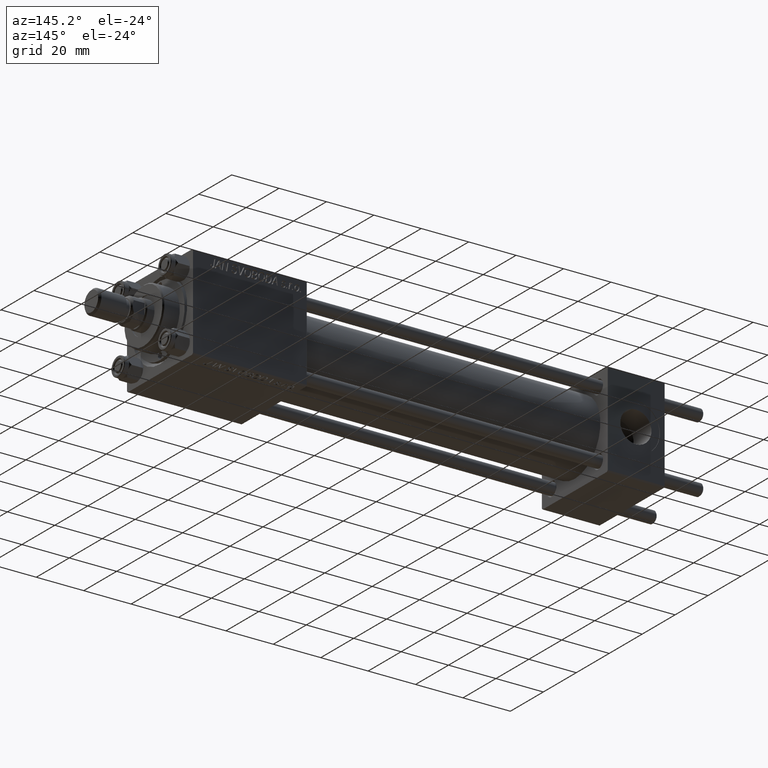
[diagram: clean part render]
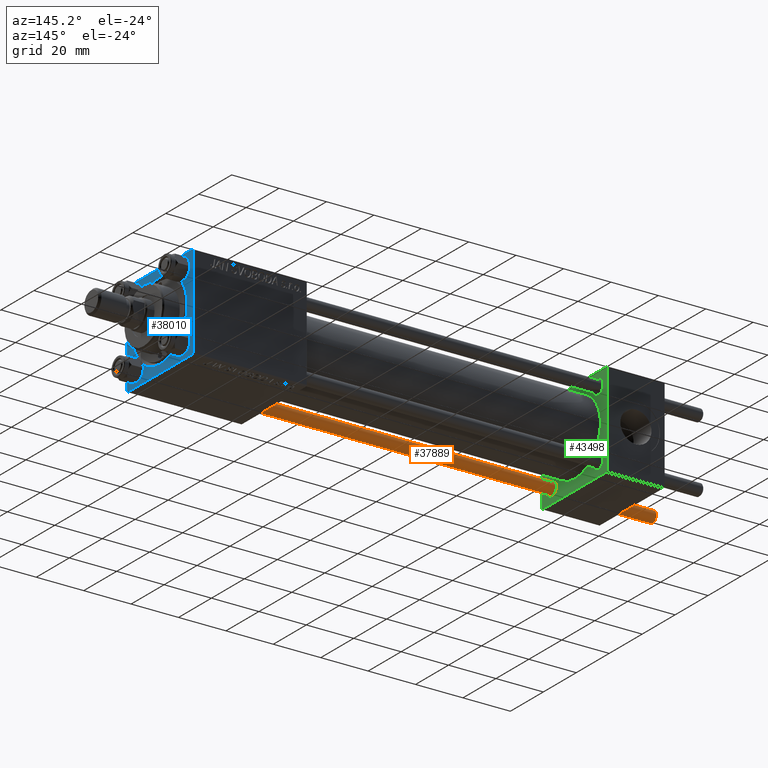
[diagram: same view with three faces highlighted in distinct colors, each labeled with its STEP entity id]
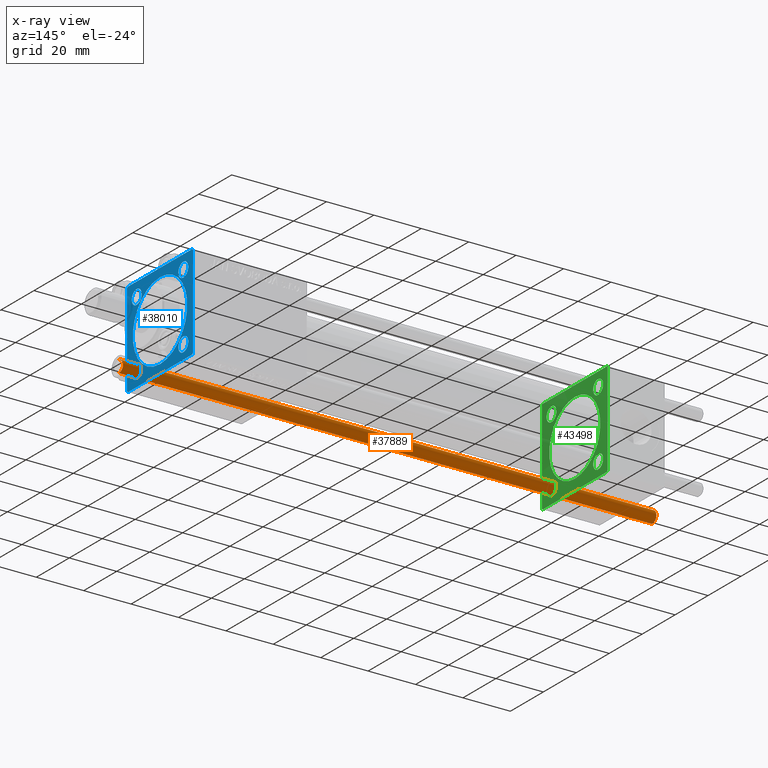
[diagram: x-ray of the same camera — body ghosted, the three highlighted faces saturated]
A machine part, auxiliary view with three faces highlighted in distinct colors.
The next image is the same camera in x-ray (body ghosted, the three faces saturated) — at least one of them is partly hidden behind the body in this view.
Their STEP definitions:

[orange] entity #37889 — the highlighted cylindrical surface (edge-blend (fillet) strip) has radius 2.5 mm, axis along (-1, 0, 0).
#1146 = VERTEX_POINT ( 'NONE', #32848 ) ;
#4361 = CARTESIAN_POINT ( 'NONE',  ( 0.000000000000000000, 0.000000000000000000, 225.5000000000000284 ) ) ;
#4557 = EDGE_CURVE ( 'NONE', #41733, #45224, #27070, .T. ) ;
#5912 = FACE_OUTER_BOUND ( 'NONE', #22734, .T. ) ;
#6117 = AXIS2_PLACEMENT_3D ( 'NONE', #24953, #28756, #44580 ) ;
#6160 = DIRECTION ( 'NONE',  ( -0.000000000000000000, -0.000000000000000000, -1.000000000000000000 ) ) ;
#10941 = CARTESIAN_POINT ( 'NONE',  ( -2.500000000000000000, 0.000000000000000000, 225.5000000000000284 ) ) ;
#10950 = ORIENTED_EDGE ( 'NONE', *, *, #15671, .F. ) ;
#11726 = DIRECTION ( 'NONE',  ( 1.000000000000000000, 0.000000000000000000, 0.000000000000000000 ) ) ;
#13451 = CIRCLE ( 'NONE', #6117, 2.500000000000000000 ) ;
#14141 = LINE ( 'NONE', #40922, #20750 ) ;
#15671 = EDGE_CURVE ( 'NONE', #1146, #49301, #14141, .T. ) ;
#19627 = DIRECTION ( 'NONE',  ( 0.000000000000000000, 0.000000000000000000, -1.000000000000000000 ) ) ;
#20562 = ORIENTED_EDGE ( 'NONE', *, *, #23831, .T. ) ;
#20750 = VECTOR ( 'NONE', #21061, 1000.000000000000000 ) ;
#21061 = DIRECTION ( 'NONE',  ( -0.000000000000000000, -0.000000000000000000, -1.000000000000000000 ) ) ;
#21688 = DIRECTION ( 'NONE',  ( -1.000000000000000000, 0.000000000000000000, 0.000000000000000000 ) ) ;
#22734 = EDGE_LOOP ( 'NONE', ( #10950, #20562, #43077, #37285 ) ) ;
#23831 = EDGE_CURVE ( 'NONE', #1146, #41733, #25910, .T. ) ;
#23979 = AXIS2_PLACEMENT_3D ( 'NONE', #45643, #6160, #21688 ) ;
#24953 = CARTESIAN_POINT ( 'NONE',  ( 0.000000000000000000, 0.000000000000000000, 0.4999999999999726885 ) ) ;
#25417 = VECTOR ( 'NONE', #46704, 1000.000000000000000 ) ;
#25910 = CIRCLE ( 'NONE', #49536, 2.500000000000000000 ) ;
#27070 = LINE ( 'NONE', #27580, #25417 ) ;
#27580 = CARTESIAN_POINT ( 'NONE',  ( -2.500000000000000000, 0.000000000000000000, 226.0000000000000000 ) ) ;
#28082 = CARTESIAN_POINT ( 'NONE',  ( 2.500000000000000000, 3.061616997868383141E-16, 0.4999999999999726885 ) ) ;
#28756 = DIRECTION ( 'NONE',  ( -0.000000000000000000, -0.000000000000000000, 1.000000000000000000 ) ) ;
#31093 = CARTESIAN_POINT ( 'NONE',  ( -2.500000000000000000, 0.000000000000000000, 0.4999999999999726885 ) ) ;
#32848 = CARTESIAN_POINT ( 'NONE',  ( 2.500000000000000000, 3.061616997868383141E-16, 225.5000000000000284 ) ) ;
#37285 = ORIENTED_EDGE ( 'NONE', *, *, #43283, .T. ) ;
#37889 = ADVANCED_FACE ( 'NONE', ( #5912 ), #41053, .T. ) ;
#40922 = CARTESIAN_POINT ( 'NONE',  ( 2.500000000000000000, 3.061616997868383141E-16, 226.0000000000000000 ) ) ;
#41053 = CYLINDRICAL_SURFACE ( 'NONE', #23979, 2.500000000000000000 ) ;
#41733 = VERTEX_POINT ( 'NONE', #10941 ) ;
#43077 = ORIENTED_EDGE ( 'NONE', *, *, #4557, .T. ) ;
#43283 = EDGE_CURVE ( 'NONE', #45224, #49301, #13451, .T. ) ;
#44580 = DIRECTION ( 'NONE',  ( 1.000000000000000000, 0.000000000000000000, 0.000000000000000000 ) ) ;
#45224 = VERTEX_POINT ( 'NONE', #31093 ) ;
#45643 = CARTESIAN_POINT ( 'NONE',  ( 0.000000000000000000, 0.000000000000000000, 226.0000000000000000 ) ) ;
#46704 = DIRECTION ( 'NONE',  ( -0.000000000000000000, -0.000000000000000000, -1.000000000000000000 ) ) ;
#49301 = VERTEX_POINT ( 'NONE', #28082 ) ;
#49536 = AXIS2_PLACEMENT_3D ( 'NONE', #4361, #19627, #11726 ) ;

[blue] entity #38010 — the highlighted planar face has unit normal (-1, 0, 0).
#72 = ORIENTED_EDGE ( 'NONE', *, *, #47641, .T. ) ;
#213 = LINE ( 'NONE', #11420, #15788 ) ;
#277 = FACE_BOUND ( 'NONE', #34258, .T. ) ;
#496 = CARTESIAN_POINT ( 'NONE',  ( 199.0000000000000000, 19.99999999999999645, -20.00000000000000000 ) ) ;
#724 = DIRECTION ( 'NONE',  ( -1.000000000000000000, -0.000000000000000000, -0.000000000000000000 ) ) ;
#814 = ORIENTED_EDGE ( 'NONE', *, *, #44709, .T. ) ;
#2834 = EDGE_LOOP ( 'NONE', ( #7460, #32580 ) ) ;
#2991 = CARTESIAN_POINT ( 'NONE',  ( 199.0000000000000000, 14.15000000000000036, -14.15000000000000036 ) ) ;
#3607 = CARTESIAN_POINT ( 'NONE',  ( 199.0000000000000000, 0.000000000000000000, 0.000000000000000000 ) ) ;
#3660 = VERTEX_POINT ( 'NONE', #23242 ) ;
#4053 = EDGE_LOOP ( 'NONE', ( #7087, #46323 ) ) ;
#4117 = FACE_BOUND ( 'NONE', #41020, .T. ) ;
#4552 = CARTESIAN_POINT ( 'NONE',  ( 199.0000000000000000, -14.15000000000000036, 14.15000000000000036 ) ) ;
#5052 = VERTEX_POINT ( 'NONE', #18930 ) ;
#5405 = VERTEX_POINT ( 'NONE', #31336 ) ;
#5567 = VECTOR ( 'NONE', #49467, 1000.000000000000114 ) ;
#5981 = ORIENTED_EDGE ( 'NONE', *, *, #9952, .T. ) ;
#6228 = CIRCLE ( 'NONE', #23316, 2.999999999999976463 ) ;
#6232 = AXIS2_PLACEMENT_3D ( 'NONE', #49005, #17906, #33422 ) ;
#6458 = EDGE_CURVE ( 'NONE', #5405, #11532, #21372, .T. ) ;
#7087 = ORIENTED_EDGE ( 'NONE', *, *, #20255, .T. ) ;
#7112 = VERTEX_POINT ( 'NONE', #44597 ) ;
#7393 = CARTESIAN_POINT ( 'NONE',  ( 199.0000000000000000, 14.15000000000000036, 11.15000000000002700 ) ) ;
#7460 = ORIENTED_EDGE ( 'NONE', *, *, #6458, .T. ) ;
#8098 = CARTESIAN_POINT ( 'NONE',  ( 199.0000000000000000, -20.00000000000000355, 19.50000000000002487 ) ) ;
#8179 = FACE_BOUND ( 'NONE', #36746, .T. ) ;
#8484 = VERTEX_POINT ( 'NONE', #7393 ) ;
#8618 = EDGE_CURVE ( 'NONE', #35675, #3660, #26986, .T. ) ;
#8713 = ORIENTED_EDGE ( 'NONE', *, *, #10591, .T. ) ;
#9439 = CIRCLE ( 'NONE', #22431, 16.49999999999995737 ) ;
#9619 = ORIENTED_EDGE ( 'NONE', *, *, #46611, .T. ) ;
#9952 = EDGE_CURVE ( 'NONE', #22652, #21978, #29614, .T. ) ;
#10068 = DIRECTION ( 'NONE',  ( -1.000000000000000000, -0.000000000000000000, -0.000000000000000000 ) ) ;
#10160 = AXIS2_PLACEMENT_3D ( 'NONE', #36776, #21483, #41104 ) ;
#10591 = EDGE_CURVE ( 'NONE', #7112, #3660, #42344, .T. ) ;
#10925 = VECTOR ( 'NONE', #45307, 1000.000000000000000 ) ;
#11234 = FACE_BOUND ( 'NONE', #4053, .T. ) ;
#11420 = CARTESIAN_POINT ( 'NONE',  ( 199.0000000000000000, 19.99999999999999645, 20.00000000000000000 ) ) ;
#11532 = VERTEX_POINT ( 'NONE', #43982 ) ;
#11546 = ORIENTED_EDGE ( 'NONE', *, *, #15171, .T. ) ;
#11983 = DIRECTION ( 'NONE',  ( -0.000000000000000000, 0.000000000000000000, 1.000000000000000000 ) ) ;
#12088 = VERTEX_POINT ( 'NONE', #47325 ) ;
#12787 = CARTESIAN_POINT ( 'NONE',  ( 199.0000000000000000, -14.15000000000000036, 11.15000000000002700 ) ) ;
#12998 = DIRECTION ( 'NONE',  ( -1.000000000000000000, -0.000000000000000000, -0.000000000000000000 ) ) ;
#13358 = DIRECTION ( 'NONE',  ( 0.000000000000000000, 0.000000000000000000, 1.000000000000000000 ) ) ;
#13706 = CARTESIAN_POINT ( 'NONE',  ( 199.0000000000000000, 19.99999999999999645, 20.00000000000000000 ) ) ;
#13776 = LINE ( 'NONE', #29314, #5567 ) ;
#14367 = CIRCLE ( 'NONE', #20893, 2.999999999999976463 ) ;
#14501 = EDGE_CURVE ( 'NONE', #49782, #5052, #25437, .T. ) ;
#14834 = CARTESIAN_POINT ( 'NONE',  ( 199.0000000000000000, 0.000000000000000000, 0.000000000000000000 ) ) ;
#15084 = DIRECTION ( 'NONE',  ( 0.000000000000000000, 8.673617379884036705E-17, -1.000000000000000000 ) ) ;
#15171 = EDGE_CURVE ( 'NONE', #17262, #37273, #19115, .T. ) ;
#15446 = ORIENTED_EDGE ( 'NONE', *, *, #21332, .T. ) ;
#15553 = FACE_OUTER_BOUND ( 'NONE', #27045, .T. ) ;
#15788 = VECTOR ( 'NONE', #31270, 1000.000000000000000 ) ;
#15897 = AXIS2_PLACEMENT_3D ( 'NONE', #2991, #21580, #28966 ) ;
#17262 = VERTEX_POINT ( 'NONE', #30750 ) ;
#17773 = EDGE_CURVE ( 'NONE', #21978, #22652, #9439, .T. ) ;
#17906 = DIRECTION ( 'NONE',  ( -1.000000000000000000, -0.000000000000000000, -0.000000000000000000 ) ) ;
#18153 = VERTEX_POINT ( 'NONE', #45001 ) ;
#18247 = AXIS2_PLACEMENT_3D ( 'NONE', #3607, #35163, #11983 ) ;
#18558 = EDGE_CURVE ( 'NONE', #37273, #17262, #44483, .T. ) ;
#18665 = DIRECTION ( 'NONE',  ( 0.000000000000000000, 0.000000000000000000, 1.000000000000000000 ) ) ;
#18817 = DIRECTION ( 'NONE',  ( 0.000000000000000000, 0.000000000000000000, 1.000000000000000000 ) ) ;
#18930 = CARTESIAN_POINT ( 'NONE',  ( 199.0000000000000000, 19.99999999999999645, -19.50000000000000000 ) ) ;
#19115 = CIRCLE ( 'NONE', #10160, 2.999999999999976463 ) ;
#19261 = DIRECTION ( 'NONE',  ( 0.000000000000000000, -0.7071067811865474617, 0.7071067811865474617 ) ) ;
#19384 = CARTESIAN_POINT ( 'NONE',  ( 199.0000000000000000, -19.49999999999999645, -20.00000000000000000 ) ) ;
#19631 = PLANE ( 'NONE',  #18247 ) ;
#20249 = ORIENTED_EDGE ( 'NONE', *, *, #36931, .T. ) ;
#20255 = EDGE_CURVE ( 'NONE', #18153, #34036, #14367, .T. ) ;
#20427 = CARTESIAN_POINT ( 'NONE',  ( 199.0000000000000000, 19.49999999999999645, -20.00000000000000000 ) ) ;
#20893 = AXIS2_PLACEMENT_3D ( 'NONE', #44891, #32894, #28332 ) ;
#21157 = VERTEX_POINT ( 'NONE', #8098 ) ;
#21332 = EDGE_CURVE ( 'NONE', #21157, #7112, #34443, .T. ) ;
#21372 = CIRCLE ( 'NONE', #23008, 2.999999999999976463 ) ;
#21483 = DIRECTION ( 'NONE',  ( -1.000000000000000000, -0.000000000000000000, -0.000000000000000000 ) ) ;
#21580 = DIRECTION ( 'NONE',  ( -1.000000000000000000, -0.000000000000000000, -0.000000000000000000 ) ) ;
#21978 = VERTEX_POINT ( 'NONE', #34327 ) ;
#22431 = AXIS2_PLACEMENT_3D ( 'NONE', #14834, #38292, #18665 ) ;
#22652 = VERTEX_POINT ( 'NONE', #48653 ) ;
#23008 = AXIS2_PLACEMENT_3D ( 'NONE', #26967, #38440, #18817 ) ;
#23242 = CARTESIAN_POINT ( 'NONE',  ( 199.0000000000000000, -19.49999999999999645, -20.00000000000000000 ) ) ;
#23316 = AXIS2_PLACEMENT_3D ( 'NONE', #43112, #12998, #48182 ) ;
#23593 = EDGE_CURVE ( 'NONE', #35675, #5052, #13776, .T. ) ;
#23826 = CARTESIAN_POINT ( 'NONE',  ( 199.0000000000000000, -19.50000000000003197, 19.99999999999999645 ) ) ;
#24817 = CIRCLE ( 'NONE', #15897, 2.999999999999976463 ) ;
#24864 = LINE ( 'NONE', #36580, #44531 ) ;
#25139 = ORIENTED_EDGE ( 'NONE', *, *, #23593, .T. ) ;
#25437 = LINE ( 'NONE', #13706, #10925 ) ;
#25654 = CARTESIAN_POINT ( 'NONE',  ( 199.0000000000000000, 19.99999999999999645, 19.50000000000002842 ) ) ;
#25681 = VECTOR ( 'NONE', #19261, 1000.000000000000114 ) ;
#26967 = CARTESIAN_POINT ( 'NONE',  ( 199.0000000000000000, 14.15000000000000036, -14.15000000000000036 ) ) ;
#26986 = LINE ( 'NONE', #496, #44270 ) ;
#27045 = EDGE_LOOP ( 'NONE', ( #15446, #8713, #36323, #25139, #48981, #814, #20249, #72 ) ) ;
#28104 = AXIS2_PLACEMENT_3D ( 'NONE', #28149, #28645, #13358 ) ;
#28149 = CARTESIAN_POINT ( 'NONE',  ( 199.0000000000000000, -14.15000000000000036, -14.15000000000000036 ) ) ;
#28332 = DIRECTION ( 'NONE',  ( 0.000000000000000000, 0.000000000000000000, 1.000000000000000000 ) ) ;
#28645 = DIRECTION ( 'NONE',  ( -1.000000000000000000, -0.000000000000000000, -0.000000000000000000 ) ) ;
#28966 = DIRECTION ( 'NONE',  ( 0.000000000000000000, 0.000000000000000000, 1.000000000000000000 ) ) ;
#29170 = DIRECTION ( 'NONE',  ( -0.000000000000000000, -0.7071067811865474617, -0.7071067811865474617 ) ) ;
#29184 = CARTESIAN_POINT ( 'NONE',  ( 199.0000000000000000, 0.000000000000000000, 0.000000000000000000 ) ) ;
#29314 = CARTESIAN_POINT ( 'NONE',  ( 199.0000000000000000, 19.99999999999999645, -19.50000000000000000 ) ) ;
#29614 = CIRCLE ( 'NONE', #41870, 16.49999999999995737 ) ;
#30750 = CARTESIAN_POINT ( 'NONE',  ( 199.0000000000000000, -14.15000000000000036, 17.14999999999997726 ) ) ;
#31270 = DIRECTION ( 'NONE',  ( 0.000000000000000000, -1.000000000000000000, -8.673617379884035472E-17 ) ) ;
#31336 = CARTESIAN_POINT ( 'NONE',  ( 199.0000000000000000, 14.15000000000000036, -17.14999999999997726 ) ) ;
#32020 = DIRECTION ( 'NONE',  ( 0.000000000000000000, 0.000000000000000000, 1.000000000000000000 ) ) ;
#32322 = VERTEX_POINT ( 'NONE', #40783 ) ;
#32580 = ORIENTED_EDGE ( 'NONE', *, *, #39479, .T. ) ;
#32894 = DIRECTION ( 'NONE',  ( -1.000000000000000000, -0.000000000000000000, -0.000000000000000000 ) ) ;
#33422 = DIRECTION ( 'NONE',  ( 0.000000000000000000, 0.000000000000000000, 1.000000000000000000 ) ) ;
#34036 = VERTEX_POINT ( 'NONE', #34835 ) ;
#34258 = EDGE_LOOP ( 'NONE', ( #37800, #11546 ) ) ;
#34327 = CARTESIAN_POINT ( 'NONE',  ( 199.0000000000000000, 0.000000000000000000, -16.49999999999995737 ) ) ;
#34443 = LINE ( 'NONE', #50018, #42921 ) ;
#34835 = CARTESIAN_POINT ( 'NONE',  ( 199.0000000000000000, -14.15000000000000036, -11.15000000000002522 ) ) ;
#35163 = DIRECTION ( 'NONE',  ( -1.000000000000000000, 0.000000000000000000, -0.000000000000000000 ) ) ;
#35675 = VERTEX_POINT ( 'NONE', #20427 ) ;
#36295 = CIRCLE ( 'NONE', #6232, 2.999999999999976463 ) ;
#36323 = ORIENTED_EDGE ( 'NONE', *, *, #8618, .F. ) ;
#36580 = CARTESIAN_POINT ( 'NONE',  ( 199.0000000000000000, -20.00000000000000355, 19.50000000000002487 ) ) ;
#36746 = EDGE_LOOP ( 'NONE', ( #41040, #9619 ) ) ;
#36747 = ORIENTED_EDGE ( 'NONE', *, *, #17773, .T. ) ;
#36776 = CARTESIAN_POINT ( 'NONE',  ( 199.0000000000000000, -14.15000000000000036, 14.15000000000000036 ) ) ;
#36931 = EDGE_CURVE ( 'NONE', #12088, #42993, #213, .T. ) ;
#37273 = VERTEX_POINT ( 'NONE', #12787 ) ;
#37800 = ORIENTED_EDGE ( 'NONE', *, *, #18558, .T. ) ;
#38010 = ADVANCED_FACE ( 'NONE', ( #11234, #38496, #8179, #277, #4117, #15553 ), #19631, .F. ) ;
#38292 = DIRECTION ( 'NONE',  ( -1.000000000000000000, -0.000000000000000000, -0.000000000000000000 ) ) ;
#38440 = DIRECTION ( 'NONE',  ( -1.000000000000000000, -0.000000000000000000, -0.000000000000000000 ) ) ;
#38496 = FACE_BOUND ( 'NONE', #2834, .T. ) ;
#38629 = CARTESIAN_POINT ( 'NONE',  ( 199.0000000000000000, 19.50000000000002487, 20.00000000000000000 ) ) ;
#39479 = EDGE_CURVE ( 'NONE', #11532, #5405, #24817, .T. ) ;
#40783 = CARTESIAN_POINT ( 'NONE',  ( 199.0000000000000000, 14.15000000000000036, 17.14999999999997726 ) ) ;
#41020 = EDGE_LOOP ( 'NONE', ( #36747, #5981 ) ) ;
#41040 = ORIENTED_EDGE ( 'NONE', *, *, #42566, .T. ) ;
#41104 = DIRECTION ( 'NONE',  ( 0.000000000000000000, 0.000000000000000000, 1.000000000000000000 ) ) ;
#41870 = AXIS2_PLACEMENT_3D ( 'NONE', #29184, #10068, #44995 ) ;
#42014 = AXIS2_PLACEMENT_3D ( 'NONE', #4552, #724, #32020 ) ;
#42344 = LINE ( 'NONE', #19384, #42710 ) ;
#42539 = DIRECTION ( 'NONE',  ( 0.000000000000000000, -1.000000000000000000, 0.000000000000000000 ) ) ;
#42566 = EDGE_CURVE ( 'NONE', #8484, #32322, #36295, .T. ) ;
#42710 = VECTOR ( 'NONE', #49986, 1000.000000000000114 ) ;
#42921 = VECTOR ( 'NONE', #15084, 1000.000000000000000 ) ;
#42993 = VERTEX_POINT ( 'NONE', #23826 ) ;
#43112 = CARTESIAN_POINT ( 'NONE',  ( 199.0000000000000000, 14.15000000000000036, 14.15000000000000036 ) ) ;
#43982 = CARTESIAN_POINT ( 'NONE',  ( 199.0000000000000000, 14.15000000000000036, -11.15000000000002522 ) ) ;
#44270 = VECTOR ( 'NONE', #42539, 1000.000000000000000 ) ;
#44483 = CIRCLE ( 'NONE', #42014, 2.999999999999976463 ) ;
#44531 = VECTOR ( 'NONE', #29170, 1000.000000000000114 ) ;
#44597 = CARTESIAN_POINT ( 'NONE',  ( 199.0000000000000000, -20.00000000000000000, -19.49999999999999645 ) ) ;
#44709 = EDGE_CURVE ( 'NONE', #49782, #12088, #50375, .T. ) ;
#44818 = EDGE_CURVE ( 'NONE', #34036, #18153, #49287, .T. ) ;
#44891 = CARTESIAN_POINT ( 'NONE',  ( 199.0000000000000000, -14.15000000000000036, -14.15000000000000036 ) ) ;
#44995 = DIRECTION ( 'NONE',  ( 0.000000000000000000, 0.000000000000000000, 1.000000000000000000 ) ) ;
#45001 = CARTESIAN_POINT ( 'NONE',  ( 199.0000000000000000, -14.15000000000000036, -17.14999999999997726 ) ) ;
#45307 = DIRECTION ( 'NONE',  ( 0.000000000000000000, 0.000000000000000000, -1.000000000000000000 ) ) ;
#46323 = ORIENTED_EDGE ( 'NONE', *, *, #44818, .T. ) ;
#46611 = EDGE_CURVE ( 'NONE', #32322, #8484, #6228, .T. ) ;
#47325 = CARTESIAN_POINT ( 'NONE',  ( 199.0000000000000000, 19.50000000000002487, 20.00000000000000000 ) ) ;
#47641 = EDGE_CURVE ( 'NONE', #42993, #21157, #24864, .T. ) ;
#48182 = DIRECTION ( 'NONE',  ( 0.000000000000000000, 0.000000000000000000, 1.000000000000000000 ) ) ;
#48653 = CARTESIAN_POINT ( 'NONE',  ( 199.0000000000000000, 2.020667218593127578E-15, 16.49999999999995737 ) ) ;
#48981 = ORIENTED_EDGE ( 'NONE', *, *, #14501, .F. ) ;
#49005 = CARTESIAN_POINT ( 'NONE',  ( 199.0000000000000000, 14.15000000000000036, 14.15000000000000036 ) ) ;
#49287 = CIRCLE ( 'NONE', #28104, 2.999999999999976463 ) ;
#49467 = DIRECTION ( 'NONE',  ( -0.000000000000000000, 0.7071067811865474617, 0.7071067811865474617 ) ) ;
#49782 = VERTEX_POINT ( 'NONE', #25654 ) ;
#49986 = DIRECTION ( 'NONE',  ( 0.000000000000000000, 0.7071067811865474617, -0.7071067811865474617 ) ) ;
#50018 = CARTESIAN_POINT ( 'NONE',  ( 199.0000000000000000, -20.00000000000000355, 19.99999999999999645 ) ) ;
#50375 = LINE ( 'NONE', #38629, #25681 ) ;

[green] entity #43498 — the highlighted planar face has unit normal (-1, 0, 0).
#568 = CARTESIAN_POINT ( 'NONE',  ( 24.00000000000000000, -14.14999999999999503, -14.15000000000000391 ) ) ;
#877 = CARTESIAN_POINT ( 'NONE',  ( 24.00000000000000000, 19.50000000000000711, -20.00000000000000711 ) ) ;
#890 = DIRECTION ( 'NONE',  ( 0.000000000000000000, 0.000000000000000000, 1.000000000000000000 ) ) ;
#1777 = VERTEX_POINT ( 'NONE', #30105 ) ;
#1784 = CARTESIAN_POINT ( 'NONE',  ( 24.00000000000000000, -14.14999999999999503, -17.15000000000000568 ) ) ;
#2006 = VECTOR ( 'NONE', #33669, 1000.000000000000000 ) ;
#2994 = ORIENTED_EDGE ( 'NONE', *, *, #28719, .F. ) ;
#3089 = ORIENTED_EDGE ( 'NONE', *, *, #28274, .T. ) ;
#3102 = CARTESIAN_POINT ( 'NONE',  ( 23.99999999999999289, 1.898202538678397557E-15, -15.50000000000000000 ) ) ;
#3426 = DIRECTION ( 'NONE',  ( -1.000000000000000000, -0.000000000000000000, -0.000000000000000000 ) ) ;
#3625 = EDGE_CURVE ( 'NONE', #9142, #44880, #5858, .T. ) ;
#5022 = EDGE_CURVE ( 'NONE', #41188, #38285, #37537, .T. ) ;
#5858 = CIRCLE ( 'NONE', #15599, 2.999999999999948930 ) ;
#6983 = CIRCLE ( 'NONE', #23260, 15.50000000000000000 ) ;
#7050 = CARTESIAN_POINT ( 'NONE',  ( 24.00000000000000000, 20.00000000000000000, 19.49999999999999289 ) ) ;
#7216 = ORIENTED_EDGE ( 'NONE', *, *, #48576, .T. ) ;
#7250 = CARTESIAN_POINT ( 'NONE',  ( 24.00000000000000000, 14.14999999999999858, 11.15000000000005365 ) ) ;
#8119 = FACE_BOUND ( 'NONE', #46687, .T. ) ;
#8125 = CARTESIAN_POINT ( 'NONE',  ( 24.00000000000000000, -20.00000000000000000, -19.49999999999999645 ) ) ;
#8258 = VERTEX_POINT ( 'NONE', #35690 ) ;
#8365 = FACE_BOUND ( 'NONE', #22967, .T. ) ;
#8455 = CARTESIAN_POINT ( 'NONE',  ( 24.00000000000000000, -14.14999999999999503, 14.15000000000000391 ) ) ;
#8487 = VECTOR ( 'NONE', #45953, 999.9999999999998863 ) ;
#8796 = VECTOR ( 'NONE', #25097, 1000.000000000000000 ) ;
#8963 = VERTEX_POINT ( 'NONE', #42995 ) ;
#9075 = ORIENTED_EDGE ( 'NONE', *, *, #45522, .T. ) ;
#9142 = VERTEX_POINT ( 'NONE', #18463 ) ;
#9510 = DIRECTION ( 'NONE',  ( 0.000000000000000000, 0.000000000000000000, 1.000000000000000000 ) ) ;
#10118 = CARTESIAN_POINT ( 'NONE',  ( 24.00000000000000000, -20.00000000000000355, 19.49999999999998224 ) ) ;
#10384 = ORIENTED_EDGE ( 'NONE', *, *, #14002, .T. ) ;
#10387 = EDGE_CURVE ( 'NONE', #1777, #42143, #39442, .T. ) ;
#10534 = CARTESIAN_POINT ( 'NONE',  ( 24.00000000000000000, -20.00000000000000355, 19.99999999999998934 ) ) ;
#10943 = CARTESIAN_POINT ( 'NONE',  ( 24.00000000000000000, 14.14999999999999858, 14.15000000000000036 ) ) ;
#11047 = CARTESIAN_POINT ( 'NONE',  ( 24.00000000000000000, 14.14999999999999858, -14.15000000000000036 ) ) ;
#11305 = DIRECTION ( 'NONE',  ( -1.000000000000000000, -0.000000000000000000, -0.000000000000000000 ) ) ;
#11542 = DIRECTION ( 'NONE',  ( 0.000000000000000000, 0.000000000000000000, 1.000000000000000000 ) ) ;
#13657 = DIRECTION ( 'NONE',  ( 0.000000000000000000, 0.000000000000000000, 1.000000000000000000 ) ) ;
#13678 = VECTOR ( 'NONE', #35247, 1000.000000000000000 ) ;
#13826 = CARTESIAN_POINT ( 'NONE',  ( 24.00000000000000000, 14.14999999999999858, 14.15000000000000036 ) ) ;
#13952 = CARTESIAN_POINT ( 'NONE',  ( 24.00000000000000000, 14.14999999999999858, -17.14999999999994884 ) ) ;
#14002 = EDGE_CURVE ( 'NONE', #38285, #8963, #21977, .T. ) ;
#14090 = ORIENTED_EDGE ( 'NONE', *, *, #14283, .T. ) ;
#14147 = DIRECTION ( 'NONE',  ( -1.000000000000000000, -0.000000000000000000, -0.000000000000000000 ) ) ;
#14158 = EDGE_LOOP ( 'NONE', ( #7216, #25111 ) ) ;
#14283 = EDGE_CURVE ( 'NONE', #21514, #41188, #47638, .T. ) ;
#14848 = CARTESIAN_POINT ( 'NONE',  ( 24.00000000000000000, 19.50000000000000000, 20.00000000000000000 ) ) ;
#14999 = VECTOR ( 'NONE', #43815, 1000.000000000000114 ) ;
#15034 = CARTESIAN_POINT ( 'NONE',  ( 24.00000000000000000, 20.00000000000000000, -20.00000000000000711 ) ) ;
#15243 = VERTEX_POINT ( 'NONE', #39242 ) ;
#15599 = AXIS2_PLACEMENT_3D ( 'NONE', #13826, #38298, #49007 ) ;
#15866 = CARTESIAN_POINT ( 'NONE',  ( 24.00000000000000000, -14.14999999999999503, 14.15000000000000391 ) ) ;
#16082 = DIRECTION ( 'NONE',  ( -1.000000000000000000, -0.000000000000000000, -0.000000000000000000 ) ) ;
#16243 = FACE_BOUND ( 'NONE', #14158, .T. ) ;
#16961 = VERTEX_POINT ( 'NONE', #877 ) ;
#17409 = EDGE_CURVE ( 'NONE', #24548, #19060, #6983, .T. ) ;
#17555 = CIRCLE ( 'NONE', #43639, 3.000000000000000888 ) ;
#18463 = CARTESIAN_POINT ( 'NONE',  ( 24.00000000000000000, 14.14999999999999858, 17.14999999999994884 ) ) ;
#18841 = DIRECTION ( 'NONE',  ( 0.000000000000000000, 0.000000000000000000, 1.000000000000000000 ) ) ;
#19060 = VERTEX_POINT ( 'NONE', #3102 ) ;
#19402 = CIRCLE ( 'NONE', #26716, 3.000000000000000888 ) ;
#20743 = DIRECTION ( 'NONE',  ( 0.000000000000000000, 0.000000000000000000, -1.000000000000000000 ) ) ;
#21414 = CARTESIAN_POINT ( 'NONE',  ( 24.00000000000000000, -19.49999999999999289, 19.99999999999998934 ) ) ;
#21514 = VERTEX_POINT ( 'NONE', #21414 ) ;
#21873 = AXIS2_PLACEMENT_3D ( 'NONE', #10943, #42810, #18841 ) ;
#21921 = VERTEX_POINT ( 'NONE', #13952 ) ;
#21977 = LINE ( 'NONE', #22482, #2006 ) ;
#22132 = VECTOR ( 'NONE', #33200, 1000.000000000000000 ) ;
#22482 = CARTESIAN_POINT ( 'NONE',  ( 24.00000000000000000, -19.50000000000000711, -20.00000000000000000 ) ) ;
#22967 = EDGE_LOOP ( 'NONE', ( #3089, #25746 ) ) ;
#23131 = FACE_BOUND ( 'NONE', #42220, .T. ) ;
#23157 = EDGE_CURVE ( 'NONE', #37557, #8258, #36544, .T. ) ;
#23260 = AXIS2_PLACEMENT_3D ( 'NONE', #44242, #48575, #40666 ) ;
#23392 = DIRECTION ( 'NONE',  ( -1.000000000000000000, 0.000000000000000000, -0.000000000000000000 ) ) ;
#23807 = DIRECTION ( 'NONE',  ( -1.000000000000000000, -0.000000000000000000, -0.000000000000000000 ) ) ;
#23896 = FACE_OUTER_BOUND ( 'NONE', #32632, .T. ) ;
#24149 = DIRECTION ( 'NONE',  ( -0.000000000000000000, 0.000000000000000000, 1.000000000000000000 ) ) ;
#24548 = VERTEX_POINT ( 'NONE', #35091 ) ;
#24952 = ORIENTED_EDGE ( 'NONE', *, *, #26760, .T. ) ;
#25097 = DIRECTION ( 'NONE',  ( -0.000000000000000000, 0.7071067811865524577, 0.7071067811865426878 ) ) ;
#25111 = ORIENTED_EDGE ( 'NONE', *, *, #38862, .T. ) ;
#25746 = ORIENTED_EDGE ( 'NONE', *, *, #3625, .T. ) ;
#25839 = ORIENTED_EDGE ( 'NONE', *, *, #27656, .T. ) ;
#26716 = AXIS2_PLACEMENT_3D ( 'NONE', #8455, #39793, #32612 ) ;
#26760 = EDGE_CURVE ( 'NONE', #16961, #8258, #49555, .T. ) ;
#27011 = DIRECTION ( 'NONE',  ( 0.000000000000000000, -1.000000000000000000, 1.734723475976807094E-16 ) ) ;
#27464 = PLANE ( 'NONE',  #44383 ) ;
#27656 = EDGE_CURVE ( 'NONE', #39876, #21514, #34495, .T. ) ;
#28054 = EDGE_CURVE ( 'NONE', #42143, #1777, #19402, .T. ) ;
#28117 = DIRECTION ( 'NONE',  ( 1.000000000000000000, 0.000000000000000000, 0.000000000000000000 ) ) ;
#28274 = EDGE_CURVE ( 'NONE', #44880, #9142, #45489, .T. ) ;
#28719 = EDGE_CURVE ( 'NONE', #19060, #24548, #36536, .T. ) ;
#30105 = CARTESIAN_POINT ( 'NONE',  ( 24.00000000000000000, -14.14999999999999503, 11.15000000000000391 ) ) ;
#30868 = DIRECTION ( 'NONE',  ( 0.000000000000000000, 0.000000000000000000, 1.000000000000000000 ) ) ;
#31164 = ORIENTED_EDGE ( 'NONE', *, *, #28054, .T. ) ;
#32264 = EDGE_CURVE ( 'NONE', #49074, #38166, #35167, .T. ) ;
#32612 = DIRECTION ( 'NONE',  ( 0.000000000000000000, 0.000000000000000000, 1.000000000000000000 ) ) ;
#32632 = EDGE_LOOP ( 'NONE', ( #48997, #24952, #50075, #48101, #25839, #14090, #43129, #10384 ) ) ;
#33200 = DIRECTION ( 'NONE',  ( 0.000000000000000000, 8.673617379884036705E-17, -1.000000000000000000 ) ) ;
#33513 = AXIS2_PLACEMENT_3D ( 'NONE', #568, #16082, #30868 ) ;
#33669 = DIRECTION ( 'NONE',  ( 0.000000000000000000, 0.7071067811865401342, -0.7071067811865549002 ) ) ;
#33951 = LINE ( 'NONE', #14848, #8487 ) ;
#34495 = LINE ( 'NONE', #50071, #13678 ) ;
#34990 = CARTESIAN_POINT ( 'NONE',  ( 24.00000000000000000, 19.50000000000000000, 20.00000000000000000 ) ) ;
#35091 = CARTESIAN_POINT ( 'NONE',  ( 23.99999999999999289, 0.000000000000000000, 15.50000000000000000 ) ) ;
#35167 = CIRCLE ( 'NONE', #33513, 3.000000000000000888 ) ;
#35247 = DIRECTION ( 'NONE',  ( 0.000000000000000000, -1.000000000000000000, -2.602085213965210149E-16 ) ) ;
#35690 = CARTESIAN_POINT ( 'NONE',  ( 24.00000000000000000, 20.00000000000000000, -19.50000000000002132 ) ) ;
#35769 = CARTESIAN_POINT ( 'NONE',  ( 23.99999999999999289, 0.000000000000000000, 0.000000000000000000 ) ) ;
#36453 = ORIENTED_EDGE ( 'NONE', *, *, #10387, .T. ) ;
#36459 = EDGE_CURVE ( 'NONE', #37557, #39876, #33951, .T. ) ;
#36536 = CIRCLE ( 'NONE', #38138, 15.50000000000000000 ) ;
#36544 = LINE ( 'NONE', #39877, #39714 ) ;
#36664 = EDGE_CURVE ( 'NONE', #16961, #8963, #49969, .T. ) ;
#37537 = LINE ( 'NONE', #10534, #22132 ) ;
#37557 = VERTEX_POINT ( 'NONE', #7050 ) ;
#37825 = AXIS2_PLACEMENT_3D ( 'NONE', #11047, #3426, #49543 ) ;
#38138 = AXIS2_PLACEMENT_3D ( 'NONE', #35769, #28117, #9510 ) ;
#38166 = VERTEX_POINT ( 'NONE', #1784 ) ;
#38285 = VERTEX_POINT ( 'NONE', #8125 ) ;
#38298 = DIRECTION ( 'NONE',  ( -1.000000000000000000, -0.000000000000000000, -0.000000000000000000 ) ) ;
#38862 = EDGE_CURVE ( 'NONE', #15243, #21921, #48434, .T. ) ;
#39242 = CARTESIAN_POINT ( 'NONE',  ( 24.00000000000000000, 14.14999999999999858, -11.15000000000005365 ) ) ;
#39442 = CIRCLE ( 'NONE', #40255, 3.000000000000000888 ) ;
#39714 = VECTOR ( 'NONE', #20743, 1000.000000000000000 ) ;
#39793 = DIRECTION ( 'NONE',  ( -1.000000000000000000, -0.000000000000000000, -0.000000000000000000 ) ) ;
#39876 = VERTEX_POINT ( 'NONE', #34990 ) ;
#39877 = CARTESIAN_POINT ( 'NONE',  ( 24.00000000000000000, 20.00000000000000000, 20.00000000000000000 ) ) ;
#39979 = ORIENTED_EDGE ( 'NONE', *, *, #17409, .F. ) ;
#39981 = CARTESIAN_POINT ( 'NONE',  ( 24.00000000000000000, -20.00000000000000355, 19.49999999999998224 ) ) ;
#40199 = VECTOR ( 'NONE', #27011, 1000.000000000000000 ) ;
#40255 = AXIS2_PLACEMENT_3D ( 'NONE', #15866, #11305, #11542 ) ;
#40666 = DIRECTION ( 'NONE',  ( 0.000000000000000000, 0.000000000000000000, 1.000000000000000000 ) ) ;
#40669 = CARTESIAN_POINT ( 'NONE',  ( 24.00000000000000000, -14.14999999999999503, 17.15000000000000568 ) ) ;
#40927 = CARTESIAN_POINT ( 'NONE',  ( 24.00000000000000000, -14.14999999999999503, -14.15000000000000391 ) ) ;
#41122 = CARTESIAN_POINT ( 'NONE',  ( 24.00000000000000000, -14.14999999999999503, -11.15000000000000391 ) ) ;
#41188 = VERTEX_POINT ( 'NONE', #10118 ) ;
#42143 = VERTEX_POINT ( 'NONE', #40669 ) ;
#42220 = EDGE_LOOP ( 'NONE', ( #36453, #31164 ) ) ;
#42810 = DIRECTION ( 'NONE',  ( -1.000000000000000000, -0.000000000000000000, -0.000000000000000000 ) ) ;
#42995 = CARTESIAN_POINT ( 'NONE',  ( 24.00000000000000000, -19.50000000000000711, -20.00000000000000000 ) ) ;
#43029 = CARTESIAN_POINT ( 'NONE',  ( 24.00000000000000000, 0.000000000000000000, 0.000000000000000000 ) ) ;
#43129 = ORIENTED_EDGE ( 'NONE', *, *, #5022, .T. ) ;
#43194 = CARTESIAN_POINT ( 'NONE',  ( 24.00000000000000000, 14.14999999999999858, -14.15000000000000036 ) ) ;
#43278 = FACE_BOUND ( 'NONE', #45949, .T. ) ;
#43498 = ADVANCED_FACE ( 'NONE', ( #43278, #16243, #23131, #8365, #8119, #23896 ), #27464, .F. ) ;
#43639 = AXIS2_PLACEMENT_3D ( 'NONE', #40927, #14147, #13657 ) ;
#43737 = AXIS2_PLACEMENT_3D ( 'NONE', #43194, #23807, #890 ) ;
#43815 = DIRECTION ( 'NONE',  ( -0.000000000000000000, -0.7071067811865500152, -0.7071067811865451302 ) ) ;
#44242 = CARTESIAN_POINT ( 'NONE',  ( 23.99999999999999289, 0.000000000000000000, 0.000000000000000000 ) ) ;
#44383 = AXIS2_PLACEMENT_3D ( 'NONE', #43029, #23392, #24149 ) ;
#44880 = VERTEX_POINT ( 'NONE', #7250 ) ;
#44971 = CARTESIAN_POINT ( 'NONE',  ( 24.00000000000000000, 20.00000000000000000, -19.50000000000002132 ) ) ;
#45489 = CIRCLE ( 'NONE', #21873, 2.999999999999948930 ) ;
#45522 = EDGE_CURVE ( 'NONE', #38166, #49074, #17555, .T. ) ;
#45949 = EDGE_LOOP ( 'NONE', ( #9075, #46399 ) ) ;
#45953 = DIRECTION ( 'NONE',  ( 0.000000000000000000, -0.7071067811865425767, 0.7071067811865525687 ) ) ;
#46212 = CIRCLE ( 'NONE', #43737, 2.999999999999948930 ) ;
#46399 = ORIENTED_EDGE ( 'NONE', *, *, #32264, .T. ) ;
#46687 = EDGE_LOOP ( 'NONE', ( #39979, #2994 ) ) ;
#47638 = LINE ( 'NONE', #39981, #14999 ) ;
#48101 = ORIENTED_EDGE ( 'NONE', *, *, #36459, .T. ) ;
#48434 = CIRCLE ( 'NONE', #37825, 2.999999999999948930 ) ;
#48575 = DIRECTION ( 'NONE',  ( 1.000000000000000000, 0.000000000000000000, 0.000000000000000000 ) ) ;
#48576 = EDGE_CURVE ( 'NONE', #21921, #15243, #46212, .T. ) ;
#48997 = ORIENTED_EDGE ( 'NONE', *, *, #36664, .F. ) ;
#49007 = DIRECTION ( 'NONE',  ( 0.000000000000000000, 0.000000000000000000, 1.000000000000000000 ) ) ;
#49074 = VERTEX_POINT ( 'NONE', #41122 ) ;
#49543 = DIRECTION ( 'NONE',  ( 0.000000000000000000, 0.000000000000000000, 1.000000000000000000 ) ) ;
#49555 = LINE ( 'NONE', #44971, #8796 ) ;
#49969 = LINE ( 'NONE', #15034, #40199 ) ;
#50071 = CARTESIAN_POINT ( 'NONE',  ( 24.00000000000000000, 20.00000000000000000, 20.00000000000000000 ) ) ;
#50075 = ORIENTED_EDGE ( 'NONE', *, *, #23157, .F. ) ;